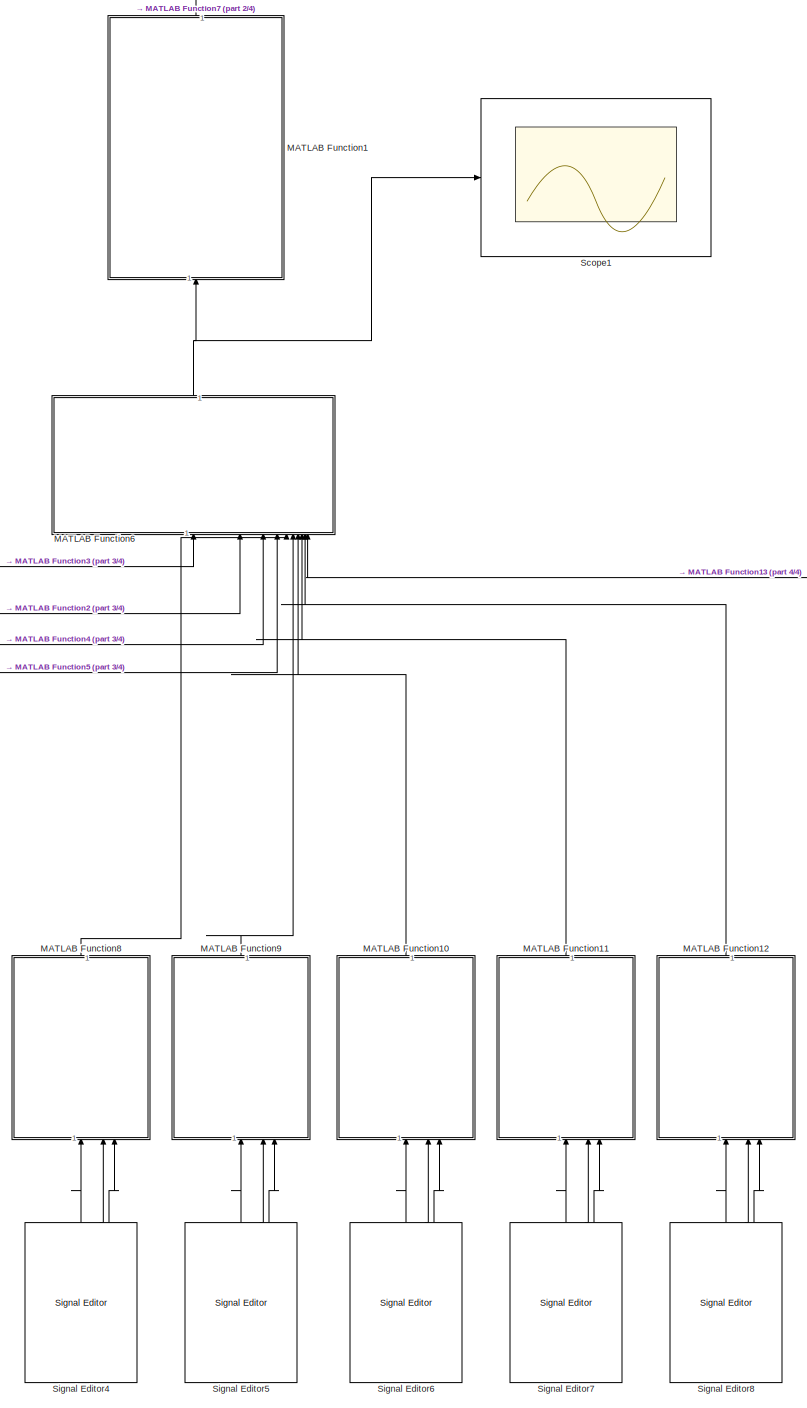
[diagram: root canvas - part 1/4, right side, full height]
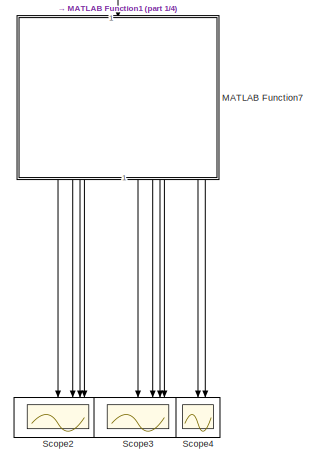
[diagram: root canvas - part 2/4, middle left region]
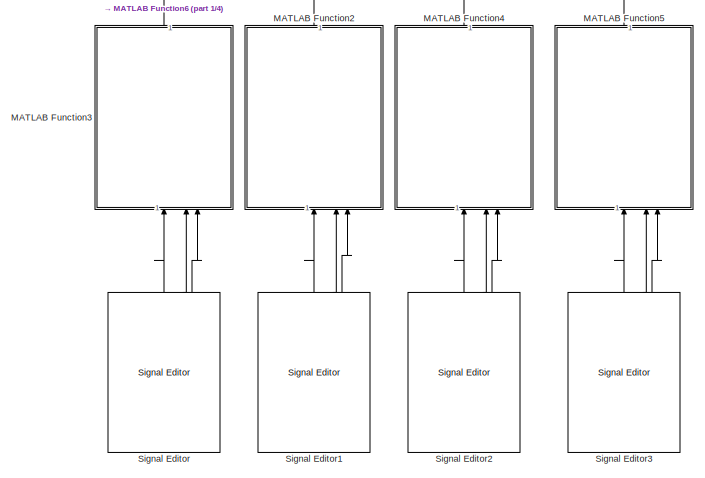
[diagram: root canvas - part 3/4, bottom left region]
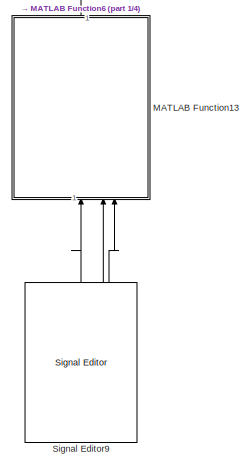
[diagram: root canvas - part 4/4, bottom right region]
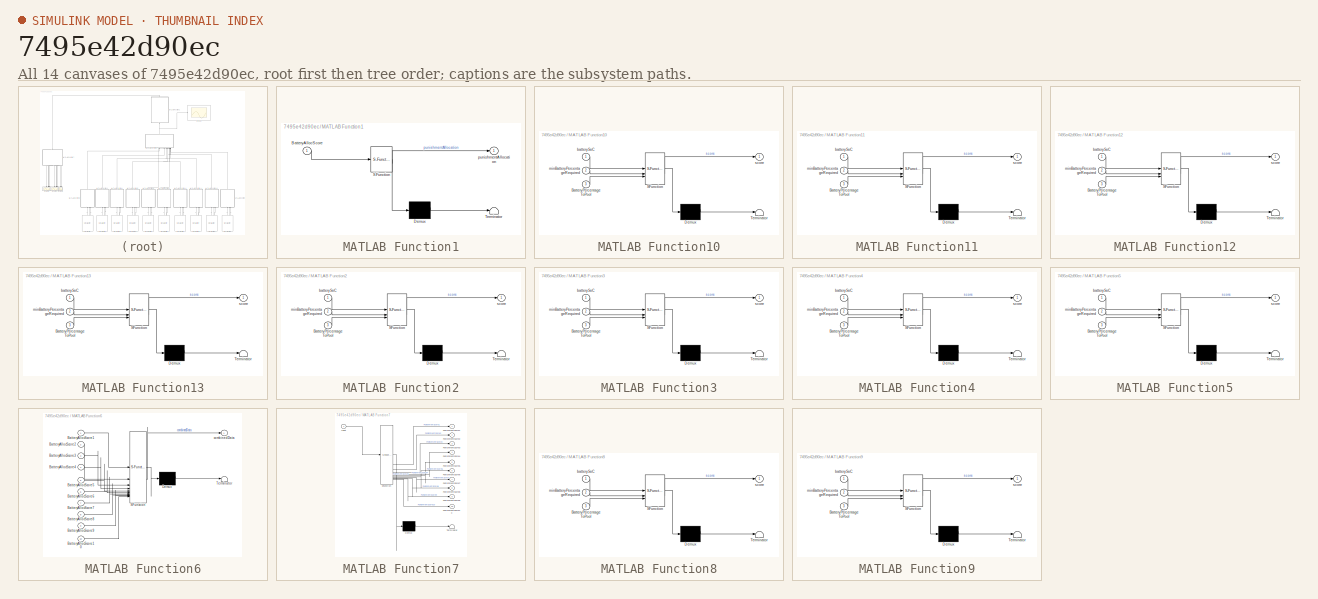
[diagram: thumbnail index - all 14 canvases of the model, root first then tree order]
MODEL slx_7495e42d90ec
KIND model
CONFIG AbsTol = auto
CONFIG EnableMultiTasking = off
CONFIG FixedStep = 1/10
CONFIG MaxStep = auto
CONFIG MinStep = auto
CONFIG RelTol = 1e-3
CONFIG SampleTimeConstraint = Unconstrained
CONFIG SolverName = ode8
CONFIG StartTime = 0.0
CONFIG StopTime = 10
BLOCK [SubSystem] MATLAB Function1
  ErrorFcn = Stateflow.Translate.translate
  NameLocation = right
  PermitHierarchicalResolution = ExplicitOnly
  SFBlockType = MATLAB Function
  TreatAsAtomicUnit = on
BLOCK [Demux] MATLAB Function1/ Demux 
  Outputs = 1
BLOCK [S-Function] MATLAB Function1/ SFunction 
  EnableBusSupport = on
  FunctionName = sf_sfun
  PortCounts = [1 2]
  SFcnIsStateOwnerBlock = off
  SFunctionDeploymentMode = off
  Tag = Stateflow S-Function 1
BLOCK [Terminator] MATLAB Function1/ Terminator 
BLOCK [Inport] MATLAB Function1/BatteryAllocScore
BLOCK [Outport] MATLAB Function1/punishmentAllocation
BLOCK [SubSystem] MATLAB Function10
  ErrorFcn = Stateflow.Translate.translate
  NameLocation = right
  PermitHierarchicalResolution = ExplicitOnly
  SFBlockType = MATLAB Function
  TreatAsAtomicUnit = on
BLOCK [Demux] MATLAB Function10/ Demux 
  Outputs = 1
BLOCK [S-Function] MATLAB Function10/ SFunction 
  EnableBusSupport = on
  FunctionName = sf_sfun
  PortCounts = [3 2]
  SFcnIsStateOwnerBlock = off
  SFunctionDeploymentMode = off
  Tag = Stateflow S-Function 10
BLOCK [Terminator] MATLAB Function10/ Terminator 
BLOCK [Inport] MATLAB Function10/BatteryPercentageToPool
  Port = 3
BLOCK [Inport] MATLAB Function10/batterySoC
BLOCK [Inport] MATLAB Function10/minBatteryPercentageRequired
  Port = 2
BLOCK [Outport] MATLAB Function10/score
BLOCK [SubSystem] MATLAB Function11
  ErrorFcn = Stateflow.Translate.translate
  NameLocation = right
  PermitHierarchicalResolution = ExplicitOnly
  SFBlockType = MATLAB Function
  TreatAsAtomicUnit = on
BLOCK [Demux] MATLAB Function11/ Demux 
  Outputs = 1
BLOCK [S-Function] MATLAB Function11/ SFunction 
  EnableBusSupport = on
  FunctionName = sf_sfun
  PortCounts = [3 2]
  SFcnIsStateOwnerBlock = off
  SFunctionDeploymentMode = off
  Tag = Stateflow S-Function 11
BLOCK [Terminator] MATLAB Function11/ Terminator 
BLOCK [Inport] MATLAB Function11/BatteryPercentageToPool
  Port = 3
BLOCK [Inport] MATLAB Function11/batterySoC
BLOCK [Inport] MATLAB Function11/minBatteryPercentageRequired
  Port = 2
BLOCK [Outport] MATLAB Function11/score
BLOCK [SubSystem] MATLAB Function12
  ErrorFcn = Stateflow.Translate.translate
  NameLocation = right
  PermitHierarchicalResolution = ExplicitOnly
  SFBlockType = MATLAB Function
  TreatAsAtomicUnit = on
BLOCK [Demux] MATLAB Function12/ Demux 
  Outputs = 1
BLOCK [S-Function] MATLAB Function12/ SFunction 
  EnableBusSupport = on
  FunctionName = sf_sfun
  PortCounts = [3 2]
  SFcnIsStateOwnerBlock = off
  SFunctionDeploymentMode = off
  Tag = Stateflow S-Function 12
BLOCK [Terminator] MATLAB Function12/ Terminator 
BLOCK [Inport] MATLAB Function12/BatteryPercentageToPool
  Port = 3
BLOCK [Inport] MATLAB Function12/batterySoC
BLOCK [Inport] MATLAB Function12/minBatteryPercentageRequired
  Port = 2
BLOCK [Outport] MATLAB Function12/score
BLOCK [SubSystem] MATLAB Function13
  ErrorFcn = Stateflow.Translate.translate
  NameLocation = right
  PermitHierarchicalResolution = ExplicitOnly
  SFBlockType = MATLAB Function
  TreatAsAtomicUnit = on
BLOCK [Demux] MATLAB Function13/ Demux 
  Outputs = 1
BLOCK [S-Function] MATLAB Function13/ SFunction 
  EnableBusSupport = on
  FunctionName = sf_sfun
  PortCounts = [3 2]
  SFcnIsStateOwnerBlock = off
  SFunctionDeploymentMode = off
  Tag = Stateflow S-Function 13
BLOCK [Terminator] MATLAB Function13/ Terminator 
BLOCK [Inport] MATLAB Function13/BatteryPercentageToPool
  Port = 3
BLOCK [Inport] MATLAB Function13/batterySoC
BLOCK [Inport] MATLAB Function13/minBatteryPercentageRequired
  Port = 2
BLOCK [Outport] MATLAB Function13/score
BLOCK [SubSystem] MATLAB Function2
  ErrorFcn = Stateflow.Translate.translate
  NameLocation = right
  PermitHierarchicalResolution = ExplicitOnly
  SFBlockType = MATLAB Function
  TreatAsAtomicUnit = on
BLOCK [Demux] MATLAB Function2/ Demux 
  Outputs = 1
BLOCK [S-Function] MATLAB Function2/ SFunction 
  EnableBusSupport = on
  FunctionName = sf_sfun
  PortCounts = [3 2]
  SFcnIsStateOwnerBlock = off
  SFunctionDeploymentMode = off
  Tag = Stateflow S-Function 3
BLOCK [Terminator] MATLAB Function2/ Terminator 
BLOCK [Inport] MATLAB Function2/BatteryPercentageToPool
  Port = 3
BLOCK [Inport] MATLAB Function2/batterySoC
BLOCK [Inport] MATLAB Function2/minBatteryPercentageRequired
  Port = 2
BLOCK [Outport] MATLAB Function2/score
BLOCK [SubSystem] MATLAB Function3
  ErrorFcn = Stateflow.Translate.translate
  NameLocation = right
  PermitHierarchicalResolution = ExplicitOnly
  SFBlockType = MATLAB Function
  TreatAsAtomicUnit = on
BLOCK [Demux] MATLAB Function3/ Demux 
  Outputs = 1
BLOCK [S-Function] MATLAB Function3/ SFunction 
  EnableBusSupport = on
  FunctionName = sf_sfun
  PortCounts = [3 2]
  SFcnIsStateOwnerBlock = off
  SFunctionDeploymentMode = off
  Tag = Stateflow S-Function 2
BLOCK [Terminator] MATLAB Function3/ Terminator 
BLOCK [Inport] MATLAB Function3/BatteryPercentageToPool
  Port = 3
BLOCK [Inport] MATLAB Function3/batterySoC
BLOCK [Inport] MATLAB Function3/minBatteryPercentageRequired
  Port = 2
BLOCK [Outport] MATLAB Function3/score
BLOCK [SubSystem] MATLAB Function4
  ErrorFcn = Stateflow.Translate.translate
  NameLocation = right
  PermitHierarchicalResolution = ExplicitOnly
  SFBlockType = MATLAB Function
  TreatAsAtomicUnit = on
BLOCK [Demux] MATLAB Function4/ Demux 
  Outputs = 1
BLOCK [S-Function] MATLAB Function4/ SFunction 
  EnableBusSupport = on
  FunctionName = sf_sfun
  PortCounts = [3 2]
  SFcnIsStateOwnerBlock = off
  SFunctionDeploymentMode = off
  Tag = Stateflow S-Function 4
BLOCK [Terminator] MATLAB Function4/ Terminator 
BLOCK [Inport] MATLAB Function4/BatteryPercentageToPool
  Port = 3
BLOCK [Inport] MATLAB Function4/batterySoC
BLOCK [Inport] MATLAB Function4/minBatteryPercentageRequired
  Port = 2
BLOCK [Outport] MATLAB Function4/score
BLOCK [SubSystem] MATLAB Function5
  ErrorFcn = Stateflow.Translate.translate
  NameLocation = right
  PermitHierarchicalResolution = ExplicitOnly
  SFBlockType = MATLAB Function
  TreatAsAtomicUnit = on
BLOCK [Demux] MATLAB Function5/ Demux 
  Outputs = 1
BLOCK [S-Function] MATLAB Function5/ SFunction 
  EnableBusSupport = on
  FunctionName = sf_sfun
  PortCounts = [3 2]
  SFcnIsStateOwnerBlock = off
  SFunctionDeploymentMode = off
  Tag = Stateflow S-Function 5
BLOCK [Terminator] MATLAB Function5/ Terminator 
BLOCK [Inport] MATLAB Function5/BatteryPercentageToPool
  Port = 3
BLOCK [Inport] MATLAB Function5/batterySoC
BLOCK [Inport] MATLAB Function5/minBatteryPercentageRequired
  Port = 2
BLOCK [Outport] MATLAB Function5/score
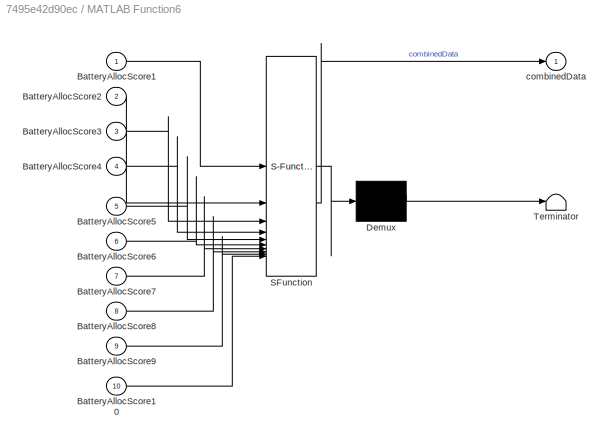
BLOCK [SubSystem] MATLAB Function6
  ErrorFcn = Stateflow.Translate.translate
  NameLocation = right
  PermitHierarchicalResolution = ExplicitOnly
  SFBlockType = MATLAB Function
  TreatAsAtomicUnit = on
BLOCK [Demux] MATLAB Function6/ Demux 
  Outputs = 1
BLOCK [S-Function] MATLAB Function6/ SFunction 
  EnableBusSupport = on
  FunctionName = sf_sfun
  PortCounts = [10 2]
  SFcnIsStateOwnerBlock = off
  SFunctionDeploymentMode = off
  Tag = Stateflow S-Function 7
BLOCK [Terminator] MATLAB Function6/ Terminator 
BLOCK [Inport] MATLAB Function6/BatteryAllocScore1
BLOCK [Inport] MATLAB Function6/BatteryAllocScore10
  Port = 10
BLOCK [Inport] MATLAB Function6/BatteryAllocScore2
  Port = 2
BLOCK [Inport] MATLAB Function6/BatteryAllocScore3
  Port = 3
BLOCK [Inport] MATLAB Function6/BatteryAllocScore4
  Port = 4
BLOCK [Inport] MATLAB Function6/BatteryAllocScore5
  Port = 5
BLOCK [Inport] MATLAB Function6/BatteryAllocScore6
  Port = 6
BLOCK [Inport] MATLAB Function6/BatteryAllocScore7
  Port = 7
BLOCK [Inport] MATLAB Function6/BatteryAllocScore8
  Port = 8
BLOCK [Inport] MATLAB Function6/BatteryAllocScore9
  Port = 9
BLOCK [Outport] MATLAB Function6/combinedData
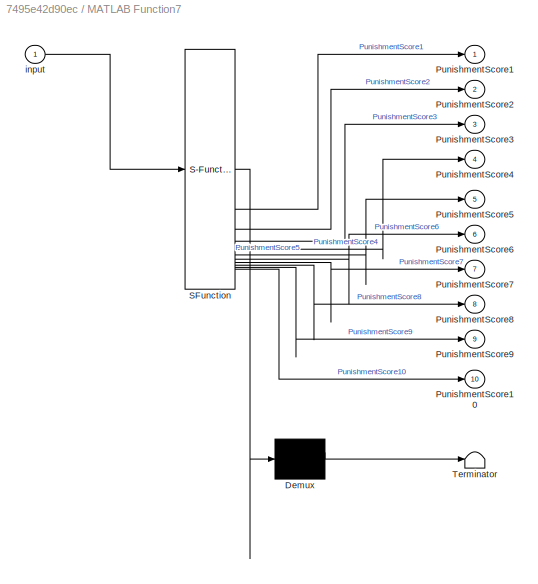
BLOCK [SubSystem] MATLAB Function7
  ErrorFcn = Stateflow.Translate.translate
  NameLocation = left
  PermitHierarchicalResolution = ExplicitOnly
  SFBlockType = MATLAB Function
  TreatAsAtomicUnit = on
BLOCK [Demux] MATLAB Function7/ Demux 
  Outputs = 1
BLOCK [S-Function] MATLAB Function7/ SFunction 
  EnableBusSupport = on
  FunctionName = sf_sfun
  PortCounts = [1 11]
  SFcnIsStateOwnerBlock = off
  SFunctionDeploymentMode = off
  Tag = Stateflow S-Function 8
BLOCK [Terminator] MATLAB Function7/ Terminator 
BLOCK [Outport] MATLAB Function7/PunishmentScore1
BLOCK [Outport] MATLAB Function7/PunishmentScore10
  Port = 10
BLOCK [Outport] MATLAB Function7/PunishmentScore2
  Port = 2
BLOCK [Outport] MATLAB Function7/PunishmentScore3
  Port = 3
BLOCK [Outport] MATLAB Function7/PunishmentScore4
  Port = 4
BLOCK [Outport] MATLAB Function7/PunishmentScore5
  Port = 5
BLOCK [Outport] MATLAB Function7/PunishmentScore6
  Port = 6
BLOCK [Outport] MATLAB Function7/PunishmentScore7
  Port = 7
BLOCK [Outport] MATLAB Function7/PunishmentScore8
  Port = 8
BLOCK [Outport] MATLAB Function7/PunishmentScore9
  Port = 9
BLOCK [Inport] MATLAB Function7/input
BLOCK [SubSystem] MATLAB Function8
  ErrorFcn = Stateflow.Translate.translate
  NameLocation = right
  PermitHierarchicalResolution = ExplicitOnly
  SFBlockType = MATLAB Function
  TreatAsAtomicUnit = on
BLOCK [Demux] MATLAB Function8/ Demux 
  Outputs = 1
BLOCK [S-Function] MATLAB Function8/ SFunction 
  EnableBusSupport = on
  FunctionName = sf_sfun
  PortCounts = [3 2]
  SFcnIsStateOwnerBlock = off
  SFunctionDeploymentMode = off
  Tag = Stateflow S-Function 6
BLOCK [Terminator] MATLAB Function8/ Terminator 
BLOCK [Inport] MATLAB Function8/BatteryPercentageToPool
  Port = 3
BLOCK [Inport] MATLAB Function8/batterySoC
BLOCK [Inport] MATLAB Function8/minBatteryPercentageRequired
  Port = 2
BLOCK [Outport] MATLAB Function8/score
BLOCK [SubSystem] MATLAB Function9
  ErrorFcn = Stateflow.Translate.translate
  NameLocation = right
  PermitHierarchicalResolution = ExplicitOnly
  SFBlockType = MATLAB Function
  TreatAsAtomicUnit = on
BLOCK [Demux] MATLAB Function9/ Demux 
  Outputs = 1
BLOCK [S-Function] MATLAB Function9/ SFunction 
  EnableBusSupport = on
  FunctionName = sf_sfun
  PortCounts = [3 2]
  SFcnIsStateOwnerBlock = off
  SFunctionDeploymentMode = off
  Tag = Stateflow S-Function 9
BLOCK [Terminator] MATLAB Function9/ Terminator 
BLOCK [Inport] MATLAB Function9/BatteryPercentageToPool
  Port = 3
BLOCK [Inport] MATLAB Function9/batterySoC
BLOCK [Inport] MATLAB Function9/minBatteryPercentageRequired
  Port = 2
BLOCK [Outport] MATLAB Function9/score
BLOCK [Scope] Scope1
  Floating = off
  NumInputPorts = 1
  ScopeSpecificationString = Simulink.scopes.TimeScopeBlockCfg('CurrentConfiguration', extmgr.ConfigurationSet(extmgr.Configuration('Core','General UI',true),extmgr.Configuration('Core','Source UI',true),extmgr.Configuration('Sources','WiredSimulink',true,'DataLoggingVariableName','ScopeData1'),extmgr.Configuration('Visuals','Time Domain',true,'SerializedDisplays',{struct('MinYLimReal','-11.06148','MaxYLimReal','111.25102','Y...<+1627ch>
BLOCK [Scope] Scope2
  Floating = off
  NameLocation = left
  NumInputPorts = 4
  ScopeSpecificationString = Simulink.scopes.TimeScopeBlockCfg('CurrentConfiguration', extmgr.ConfigurationSet(extmgr.Configuration('Core','General UI',true),extmgr.Configuration('Core','Source UI',true),extmgr.Configuration('Sources','WiredSimulink',true,'DataLoggingVariableName','ScopeData1'),extmgr.Configuration('Visuals','Time Domain',true,'SerializedDisplays',{struct('MinYLimReal','-1.00000','MaxYLimReal','1.00000','YLab...<+3485ch>
BLOCK [Scope] Scope3
  Floating = off
  NameLocation = left
  NumInputPorts = 4
  ScopeSpecificationString = Simulink.scopes.TimeScopeBlockCfg('CurrentConfiguration', extmgr.ConfigurationSet(extmgr.Configuration('Core','General UI',true),extmgr.Configuration('Core','Source UI',true),extmgr.Configuration('Sources','WiredSimulink',true,'DataLoggingVariableName','ScopeData2'),extmgr.Configuration('Visuals','Time Domain',true,'SerializedDisplays',{struct('MinYLimReal','-0.25','MaxYLimReal','2.25','YLabelReal...<+3497ch>
BLOCK [Scope] Scope4
  Floating = off
  NameLocation = left
  NumInputPorts = 2
  ScopeSpecificationString = Simulink.scopes.TimeScopeBlockCfg('CurrentConfiguration', extmgr.ConfigurationSet(extmgr.Configuration('Core','General UI',true),extmgr.Configuration('Core','Source UI',true),extmgr.Configuration('Sources','WiredSimulink',true,'DataLoggingVariableName','ScopeData3'),extmgr.Configuration('Visuals','Time Domain',true,'SerializedDisplays',{struct('MinYLimReal','-0.25','MaxYLimReal','2.25','YLabelReal...<+2040ch>
BLOCK [Reference] Signal Editor  REF=SignalEditorBlockLib/Signal Editor
  NameLocation = right
  SourceBlock = SignalEditorBlockLib/Signal Editor
  SourceType = SignalEditor
  UserDataPersistent = on
BLOCK [Reference] Signal Editor1  REF=SignalEditorBlockLib/Signal Editor
  NameLocation = right
  SourceBlock = SignalEditorBlockLib/Signal Editor
  SourceType = SignalEditor
  UserDataPersistent = on
BLOCK [Reference] Signal Editor2  REF=SignalEditorBlockLib/Signal Editor
  NameLocation = right
  SourceBlock = SignalEditorBlockLib/Signal Editor
  SourceType = SignalEditor
  UserDataPersistent = on
BLOCK [Reference] Signal Editor3  REF=SignalEditorBlockLib/Signal Editor
  NameLocation = right
  SourceBlock = SignalEditorBlockLib/Signal Editor
  SourceType = SignalEditor
  UserDataPersistent = on
BLOCK [Reference] Signal Editor4  REF=SignalEditorBlockLib/Signal Editor
  NameLocation = right
  SourceBlock = SignalEditorBlockLib/Signal Editor
  SourceType = SignalEditor
  UserDataPersistent = on
BLOCK [Reference] Signal Editor5  REF=SignalEditorBlockLib/Signal Editor
  NameLocation = right
  SourceBlock = SignalEditorBlockLib/Signal Editor
  SourceType = SignalEditor
  UserDataPersistent = on
BLOCK [Reference] Signal Editor6  REF=SignalEditorBlockLib/Signal Editor
  NameLocation = right
  SourceBlock = SignalEditorBlockLib/Signal Editor
  SourceType = SignalEditor
  UserDataPersistent = on
BLOCK [Reference] Signal Editor7  REF=SignalEditorBlockLib/Signal Editor
  NameLocation = right
  SourceBlock = SignalEditorBlockLib/Signal Editor
  SourceType = SignalEditor
  UserDataPersistent = on
BLOCK [Reference] Signal Editor8  REF=SignalEditorBlockLib/Signal Editor
  NameLocation = right
  SourceBlock = SignalEditorBlockLib/Signal Editor
  SourceType = SignalEditor
  UserDataPersistent = on
BLOCK [Reference] Signal Editor9  REF=SignalEditorBlockLib/Signal Editor
  NameLocation = right
  SourceBlock = SignalEditorBlockLib/Signal Editor
  SourceType = SignalEditor
  UserDataPersistent = on
LINE MATLAB Function10:1 -> MATLAB Function6:7
LINE MATLAB Function11:1 -> MATLAB Function6:8
LINE MATLAB Function12:1 -> MATLAB Function6:9
LINE MATLAB Function13:1 -> MATLAB Function6:10
LINE MATLAB Function1:1 -> MATLAB Function7:1
LINE MATLAB Function2:1 -> MATLAB Function6:2
LINE MATLAB Function3:1 -> MATLAB Function6:1
LINE MATLAB Function4:1 -> MATLAB Function6:3
LINE MATLAB Function5:1 -> MATLAB Function6:4
NET MATLAB Function6:1 -> MATLAB Function1:1, Scope1:1
LINE MATLAB Function7:1 -> Scope2:1
LINE MATLAB Function7:10 -> Scope4:2
LINE MATLAB Function7:2 -> Scope2:2
LINE MATLAB Function7:3 -> Scope2:3
LINE MATLAB Function7:4 -> Scope2:4
LINE MATLAB Function7:5 -> Scope3:1
LINE MATLAB Function7:6 -> Scope3:2
LINE MATLAB Function7:7 -> Scope3:3
LINE MATLAB Function7:8 -> Scope3:4
LINE MATLAB Function7:9 -> Scope4:1
LINE MATLAB Function8:1 -> MATLAB Function6:5
LINE MATLAB Function9:1 -> MATLAB Function6:6
LINE Signal Editor1:1 -> MATLAB Function2:1
LINE Signal Editor1:2 -> MATLAB Function2:2
LINE Signal Editor1:3 -> MATLAB Function2:3
LINE Signal Editor2:1 -> MATLAB Function4:1
LINE Signal Editor2:2 -> MATLAB Function4:2
LINE Signal Editor2:3 -> MATLAB Function4:3
LINE Signal Editor3:1 -> MATLAB Function5:1
LINE Signal Editor3:2 -> MATLAB Function5:2
LINE Signal Editor3:3 -> MATLAB Function5:3
LINE Signal Editor4:1 -> MATLAB Function8:1
LINE Signal Editor4:2 -> MATLAB Function8:2
LINE Signal Editor4:3 -> MATLAB Function8:3
LINE Signal Editor5:1 -> MATLAB Function9:1
LINE Signal Editor5:2 -> MATLAB Function9:2
LINE Signal Editor5:3 -> MATLAB Function9:3
LINE Signal Editor6:1 -> MATLAB Function10:1
LINE Signal Editor6:2 -> MATLAB Function10:2
LINE Signal Editor6:3 -> MATLAB Function10:3
LINE Signal Editor7:1 -> MATLAB Function11:1
LINE Signal Editor7:2 -> MATLAB Function11:2
LINE Signal Editor7:3 -> MATLAB Function11:3
LINE Signal Editor8:1 -> MATLAB Function12:1
LINE Signal Editor8:2 -> MATLAB Function12:2
LINE Signal Editor8:3 -> MATLAB Function12:3
LINE Signal Editor9:1 -> MATLAB Function13:1
LINE Signal Editor9:2 -> MATLAB Function13:2
LINE Signal Editor9:3 -> MATLAB Function13:3
LINE Signal Editor:1 -> MATLAB Function3:1
LINE Signal Editor:2 -> MATLAB Function3:2
LINE Signal Editor:3 -> MATLAB Function3:3
note: NET lines group one-source signal fan-out (src -> all destinations, sorted); 1:1 wires keep LINE
CHART MATLAB Function9 states=1 transitions=1
  STATE_LABEL 'eML_blk_kernel()'
  STATE_LABEL "SCRIPT:\nfunction score = BatteryAllocScore(batterySoC, minBatteryPercentageRequired, ...\n    BatteryPercentageToPool)\n    % A function to calculate an individual load's score\n\n    score = (BatteryPercentageToPool)...\n        /(batterySoC-minBatteryPercentageRequired) * 100;\nend"  <repeated x10 — deduplicated; at blocks: MATLAB Function9, MATLAB Function10, MATLAB Function11, MATLAB Function12, MATLAB Function13, MATLAB Function3, MATLAB Function2, MATLAB Function4, MATLAB Function5, MATLAB Function8>
CHART MATLAB Function10 states=1 transitions=1
  STATE_LABEL 'eML_blk_kernel()'
CHART MATLAB Function11 states=1 transitions=1
  STATE_LABEL 'eML_blk_kernel()'
CHART MATLAB Function12 states=1 transitions=1
  STATE_LABEL 'eML_blk_kernel()'
CHART MATLAB Function13 states=1 transitions=1
  STATE_LABEL 'eML_blk_kernel()'
CHART MATLAB Function1 states=1 transitions=1
  STATE_LABEL 'eML_blk_kernel()'
  STATE_LABEL 'SCRIPT:\nfunction punishmentAllocation = NormalPunishment(BatteryAllocScore)\n    % A function to find the punishment level of a load when the pool is at\n    % a stable level\n\n    % Finding the average of all BatteryAllocation Scores\n    AvgBatteryAllocScore = mean(BatteryAllocScore);\n\n    % Calculating 4 Standard Deviations away from the average\n    higherStdevs = AvgBatteryAllocScore - (1.5 * std(...<+792ch>'
CHART MATLAB Function3 states=1 transitions=1
  STATE_LABEL 'eML_blk_kernel()'
CHART MATLAB Function2 states=1 transitions=1
  STATE_LABEL 'eML_blk_kernel()'
CHART MATLAB Function4 states=1 transitions=1
  STATE_LABEL 'eML_blk_kernel()'
CHART MATLAB Function5 states=1 transitions=1
  STATE_LABEL 'eML_blk_kernel()'
CHART MATLAB Function8 states=1 transitions=1
  STATE_LABEL 'eML_blk_kernel()'
CHART MATLAB Function6 states=1 transitions=1
  STATE_LABEL 'eML_blk_kernel()'
  STATE_LABEL 'SCRIPT:\nfunction combinedData = CombineData(BatteryAllocScore1, BatteryAllocScore2, BatteryAllocScore3, BatteryAllocScore4, BatteryAllocScore5, BatteryAllocScore6, BatteryAllocScore7, BatteryAllocScore8, BatteryAllocScore9, BatteryAllocScore10)\n\n    combinedData = [BatteryAllocScore1, BatteryAllocScore2, BatteryAllocScore3, BatteryAllocScore4, BatteryAllocScore5, BatteryAllocScore6, BatteryAllocSc...<+73ch>'
CHART MATLAB Function7 states=1 transitions=1
  STATE_LABEL 'eML_blk_kernel()'
  STATE_LABEL 'SCRIPT:\nfunction [PunishmentScore1, PunishmentScore2, PunishmentScore3, PunishmentScore4, PunishmentScore5, PunishmentScore6, PunishmentScore7, PunishmentScore8, PunishmentScore9, PunishmentScore10] = DemuxPunishments(input)\n\n    PunishmentScore1 = input(1);\n    PunishmentScore2 = input(2);\n    PunishmentScore3 = input(3);\n    PunishmentScore4 = input(4);\n    PunishmentScore5 = input(5);\n    Punis...<+162ch>'
CHART  states=0 transitions=0
CHART  states=0 transitions=0
CHART  states=0 transitions=0
CHART  states=0 transitions=0
CHART  states=0 transitions=0
CHART  states=0 transitions=0
CHART  states=0 transitions=0
CHART  states=0 transitions=0
CHART  states=0 transitions=0
CHART  states=0 transitions=0
CHART  states=0 transitions=0
CHART  states=0 transitions=0
CHART  states=0 transitions=0
